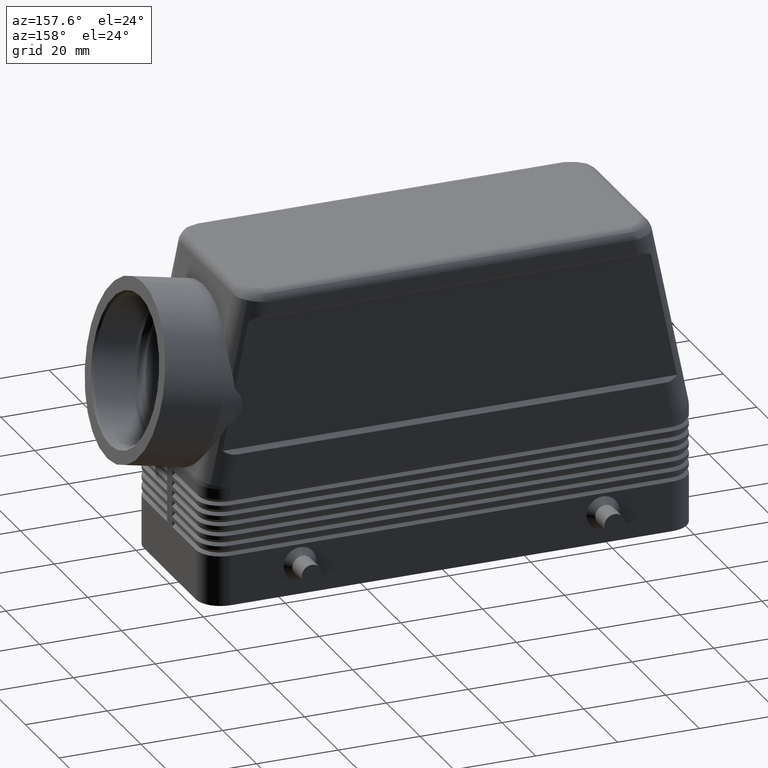
[diagram: clean part render]
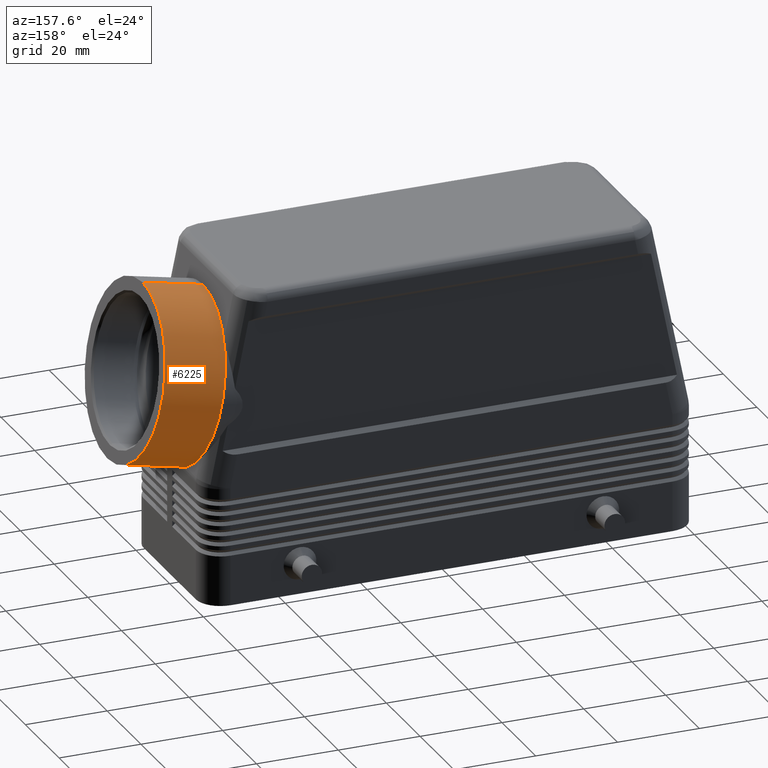
[diagram: same view with one face highlighted and labeled with its STEP entity id]
A machine part, auxiliary view. The second image highlights one B-rep face of the part: STEP entity #6225.
In plain terms, the highlighted cylindrical surface (partial cylindrical patch) has radius 21.5 mm, axis along (-0.9798, 0, -0.2002).
Its self-contained STEP definition (entity closure, byte-faithful):
#5165=CARTESIAN_POINT('',(75.236911448338674,0.0,31.039778406493959));
#5166=VERTEX_POINT('',#5165);
#5167=CARTESIAN_POINT('',(60.540482744460675,0.0,28.037282219680169));
#5168=VERTEX_POINT('',#5167);
#5169=CARTESIAN_POINT('',(75.236911448338674,0.0,31.039778406493959));
#5170=DIRECTION('',(-0.979761913591865,0.0,-0.200166412454252));
#5171=VECTOR('',#5170,15.000000000000016);
#5172=LINE('',#5169,#5171);
#5173=EDGE_CURVE('',#5166,#5168,#5172,.T.);
#5175=CARTESIAN_POINT('',(66.629755712805803,-2.632904E-015,73.169540690944203));
#5176=VERTEX_POINT('',#5175);
#5184=CARTESIAN_POINT('',(51.933327008927812,-2.632904E-015,70.167044504130416));
#5185=VERTEX_POINT('',#5184);
#5186=CARTESIAN_POINT('',(51.933327008927812,-2.632904E-015,70.167044504130416));
#5187=DIRECTION('',(0.979761913591865,2.629536E-032,0.200166412454252));
#5188=VECTOR('',#5187,15.000000000000009);
#5189=LINE('',#5186,#5188);
#5190=EDGE_CURVE('',#5185,#5176,#5189,.T.);
#6019=CARTESIAN_POINT('',(56.236904876694247,0.0,49.102163361905291));
#6020=DIRECTION('',(-0.979761913591865,0.0,-0.200166412454252));
#6021=DIRECTION('',(0.200166412454252,0.0,-0.979761913591865));
#6022=AXIS2_PLACEMENT_3D('',#6019,#6020,#6021);
#6023=CIRCLE('',#6022,21.500000000000011);
#6024=EDGE_CURVE('',#5185,#5168,#6023,.T.);
#6200=CARTESIAN_POINT('',(70.933333580572238,0.0,52.104659548719077));
#6201=DIRECTION('',(-0.979761913591865,0.0,-0.200166412454252));
#6202=DIRECTION('',(0.200166412454252,0.0,-0.979761913591865));
#6203=AXIS2_PLACEMENT_3D('',#6200,#6201,#6202);
#6204=CIRCLE('',#6203,21.500000000000011);
#6205=EDGE_CURVE('',#5176,#5166,#6204,.T.);
#6214=CARTESIAN_POINT('',(63.585119228633246,0.0,50.603411455312184));
#6215=DIRECTION('',(-0.979761913591866,0.0,-0.200166412454252));
#6216=DIRECTION('',(0.200166412454252,0.0,-0.979761913591865));
#6217=AXIS2_PLACEMENT_3D('',#6214,#6215,#6216);
#6218=CYLINDRICAL_SURFACE('',#6217,21.500000000000011);
#6219=ORIENTED_EDGE('',*,*,#5173,.T.);
#6220=ORIENTED_EDGE('',*,*,#6024,.F.);
#6221=ORIENTED_EDGE('',*,*,#5190,.T.);
#6222=ORIENTED_EDGE('',*,*,#6205,.T.);
#6223=EDGE_LOOP('',(#6219,#6220,#6221,#6222));
#6224=FACE_OUTER_BOUND('',#6223,.T.);
#6225=ADVANCED_FACE('',(#6224),#6218,.T.);